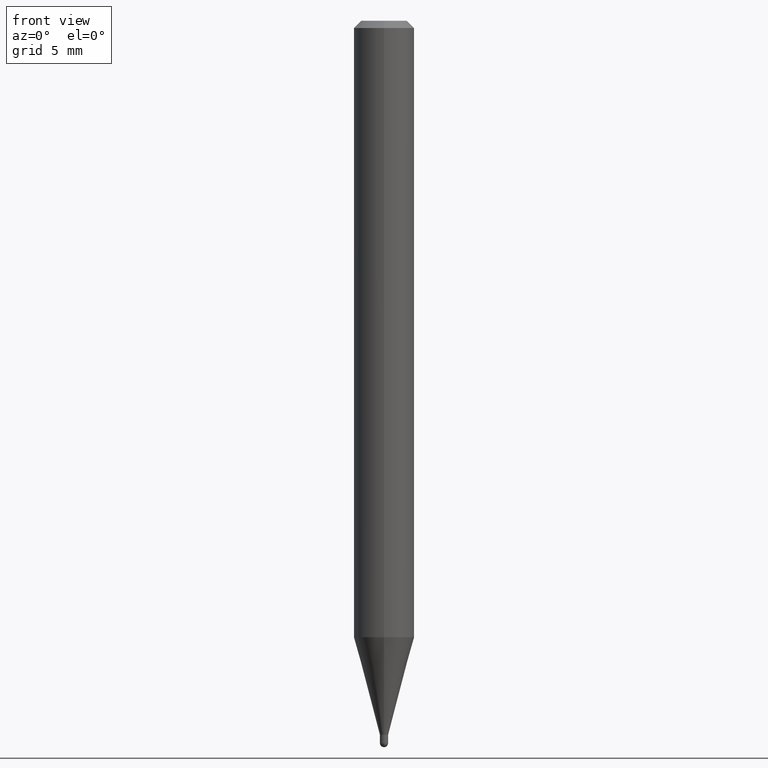
[diagram: clean part render]
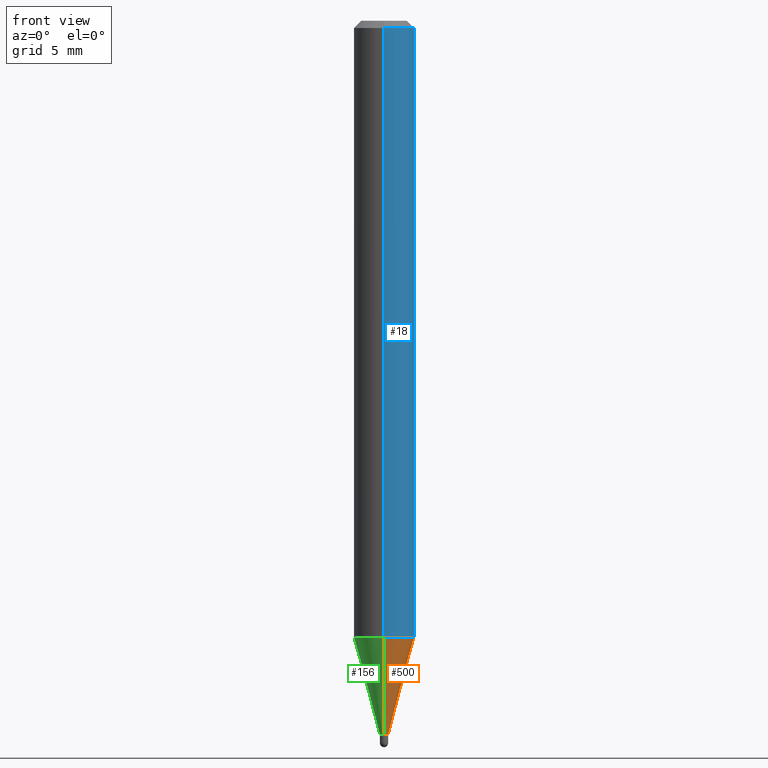
[diagram: same view with three faces highlighted in distinct colors, each labeled with its STEP entity id]
A machine part, front view with three faces highlighted in distinct colors.
Their STEP definitions:

[orange] entity #500 — the highlighted conical surface has half-angle 15 deg.
#1 = DIRECTION ( 'NONE',  ( -6.982962677686265922E-15, -1.000000000000000000, 4.370956789862821150E-15 ) ) ;
#14 = VERTEX_POINT ( 'NONE', #236 ) ;
#24 = EDGE_CURVE ( 'NONE', #374, #96, #238, .T. ) ;
#29 = AXIS2_PLACEMENT_3D ( 'NONE', #245, #394, #36 ) ;
#33 = DIRECTION ( 'NONE',  ( -2.445465897331447067E-29, 3.491485504487190597E-15, 1.000000000000000000 ) ) ;
#36 = DIRECTION ( 'NONE',  ( -6.982962677686266711E-15, -1.000000000000000000, 0.000000000000000000 ) ) ;
#67 = DIRECTION ( 'NONE',  ( 1.839019923739648436E-15, 0.2588190451025317307, 0.9659258262890653146 ) ) ;
#77 = CARTESIAN_POINT ( 'NONE',  ( 2.522426711948690701E-16, 0.008499999999994777358, -1.474500000000000366 ) ) ;
#96 = VERTEX_POINT ( 'NONE', #241 ) ;
#157 = AXIS2_PLACEMENT_3D ( 'NONE', #356, #33, #1 ) ;
#161 = CIRCLE ( 'NONE', #29, 0.008499999999999924283 ) ;
#162 = LINE ( 'NONE', #466, #429 ) ;
#165 = CIRCLE ( 'NONE', #157, 0.06250000000000000000 ) ;
#186 = EDGE_LOOP ( 'NONE', ( #331, #448, #328, #485 ) ) ;
#225 = VERTEX_POINT ( 'NONE', #417 ) ;
#236 = CARTESIAN_POINT ( 'NONE',  ( -4.364351673553606080E-16, -0.06250000000000446865, -1.272969256391286663 ) ) ;
#238 = LINE ( 'NONE', #277, #364 ) ;
#241 = CARTESIAN_POINT ( 'NONE',  ( 4.440892098500935790E-16, 0.06249999999999555217, -1.272969256391287329 ) ) ;
#245 = CARTESIAN_POINT ( 'NONE',  ( 3.605839465615219646E-29, -5.148195376366364241E-15, -1.474500000000000366 ) ) ;
#270 = EDGE_CURVE ( 'NONE', #225, #14, #162, .T. ) ;
#277 = CARTESIAN_POINT ( 'NONE',  ( 6.039613253964404353E-17, 0.008499999999994777358, -1.474500000000000366 ) ) ;
#328 = ORIENTED_EDGE ( 'NONE', *, *, #368, .F. ) ;
#330 = FACE_OUTER_BOUND ( 'NONE', #186, .T. ) ;
#331 = ORIENTED_EDGE ( 'NONE', *, *, #412, .T. ) ;
#356 = CARTESIAN_POINT ( 'NONE',  ( 3.113002904856262917E-29, -4.444553706348016691E-15, -1.272969256391287107 ) ) ;
#364 = VECTOR ( 'NONE', #67, 39.37007874015748143 ) ;
#368 = EDGE_CURVE ( 'NONE', #14, #96, #165, .T. ) ;
#373 = CARTESIAN_POINT ( 'NONE',  ( 3.605839465615219646E-29, -5.148195376366364241E-15, -1.474500000000000366 ) ) ;
#374 = VERTEX_POINT ( 'NONE', #77 ) ;
#394 = DIRECTION ( 'NONE',  ( -2.445465897331447067E-29, 3.491485504487190597E-15, 1.000000000000000000 ) ) ;
#408 = DIRECTION ( 'NONE',  ( -2.445465897331447067E-29, 3.491485504487190597E-15, 1.000000000000000000 ) ) ;
#412 = EDGE_CURVE ( 'NONE', #225, #374, #161, .T. ) ;
#417 = CARTESIAN_POINT ( 'NONE',  ( -5.935518276029667030E-17, -0.008500000000005072942, -1.474500000000000366 ) ) ;
#429 = VECTOR ( 'NONE', #441, 39.37007874015748854 ) ;
#441 = DIRECTION ( 'NONE',  ( -1.807323732225377471E-15, -0.2588190451025249583, 0.9659258262890670910 ) ) ;
#448 = ORIENTED_EDGE ( 'NONE', *, *, #24, .T. ) ;
#466 = CARTESIAN_POINT ( 'NONE',  ( -5.935518276029667030E-17, -0.008500000000005072942, -1.474500000000000366 ) ) ;
#479 = DIRECTION ( 'NONE',  ( -6.982962677686266711E-15, -1.000000000000000000, 0.000000000000000000 ) ) ;
#485 = ORIENTED_EDGE ( 'NONE', *, *, #270, .F. ) ;
#500 = ADVANCED_FACE ( 'NONE', ( #330 ), #508, .T. ) ;
#504 = AXIS2_PLACEMENT_3D ( 'NONE', #373, #408, #479 ) ;
#508 = CONICAL_SURFACE ( 'NONE', #504, 0.008499999999999924283, 0.2617993877991572904 ) ;

[blue] entity #18 — the highlighted cylindrical surface (edge-blend (fillet) strip) has radius 1.5875 mm, axis along (-0, 0, 1).
#1 = DIRECTION ( 'NONE',  ( -6.982962677686265922E-15, -1.000000000000000000, 4.370956789862821150E-15 ) ) ;
#3 = AXIS2_PLACEMENT_3D ( 'NONE', #327, #170, #395 ) ;
#14 = VERTEX_POINT ( 'NONE', #236 ) ;
#18 = ADVANCED_FACE ( 'NONE', ( #377 ), #385, .T. ) ;
#33 = DIRECTION ( 'NONE',  ( -2.445465897331447067E-29, 3.491485504487190597E-15, 1.000000000000000000 ) ) ;
#65 = DIRECTION ( 'NONE',  ( -2.445465897331447067E-29, 3.491485504487190597E-15, 1.000000000000000000 ) ) ;
#66 = ORIENTED_EDGE ( 'NONE', *, *, #295, .T. ) ;
#74 = DIRECTION ( 'NONE',  ( -2.445465897331447067E-29, 3.491485504487190992E-15, 1.000000000000000000 ) ) ;
#92 = VERTEX_POINT ( 'NONE', #190 ) ;
#95 = ORIENTED_EDGE ( 'NONE', *, *, #117, .F. ) ;
#96 = VERTEX_POINT ( 'NONE', #241 ) ;
#117 = EDGE_CURVE ( 'NONE', #14, #92, #380, .T. ) ;
#144 = VERTEX_POINT ( 'NONE', #223 ) ;
#151 = DIRECTION ( 'NONE',  ( -6.982962677686265922E-15, -1.000000000000000000, 3.491485504487190203E-15 ) ) ;
#157 = AXIS2_PLACEMENT_3D ( 'NONE', #356, #33, #1 ) ;
#165 = CIRCLE ( 'NONE', #157, 0.06250000000000000000 ) ;
#170 = DIRECTION ( 'NONE',  ( -2.445465897331447067E-29, 3.491485504487190597E-15, 1.000000000000000000 ) ) ;
#182 = VECTOR ( 'NONE', #74, 39.37007874015748143 ) ;
#190 = CARTESIAN_POINT ( 'NONE',  ( -4.364351673553912750E-16, -0.06250000000000005551, -0.01499999999999979128 ) ) ;
#223 = CARTESIAN_POINT ( 'NONE',  ( 4.440892098500938748E-16, 0.06249999999999995143, -0.01500000000000022669 ) ) ;
#236 = CARTESIAN_POINT ( 'NONE',  ( -4.364351673553606080E-16, -0.06250000000000446865, -1.272969256391286663 ) ) ;
#241 = CARTESIAN_POINT ( 'NONE',  ( 4.440892098500935790E-16, 0.06249999999999555217, -1.272969256391287329 ) ) ;
#259 = EDGE_LOOP ( 'NONE', ( #302, #66, #403, #95 ) ) ;
#280 = VECTOR ( 'NONE', #292, 39.37007874015748143 ) ;
#287 = EDGE_CURVE ( 'NONE', #92, #144, #461, .T. ) ;
#292 = DIRECTION ( 'NONE',  ( -2.445465897331447067E-29, 3.491485504487190992E-15, 1.000000000000000000 ) ) ;
#295 = EDGE_CURVE ( 'NONE', #96, #144, #432, .T. ) ;
#302 = ORIENTED_EDGE ( 'NONE', *, *, #368, .T. ) ;
#323 = CARTESIAN_POINT ( 'NONE',  ( 4.440892098500625669E-16, 0.06250000000000000000, -2.182178440304493877E-16 ) ) ;
#327 = CARTESIAN_POINT ( 'NONE',  ( 3.668198845997173123E-31, -5.237228256730788953E-17, -0.01500000000000000812 ) ) ;
#342 = CARTESIAN_POINT ( 'NONE',  ( 0.000000000000000000, 0.000000000000000000, 0.000000000000000000 ) ) ;
#347 = CARTESIAN_POINT ( 'NONE',  ( -4.364351673553916201E-16, -0.06250000000000000000, 2.182178440304493877E-16 ) ) ;
#356 = CARTESIAN_POINT ( 'NONE',  ( 3.113002904856262917E-29, -4.444553706348016691E-15, -1.272969256391287107 ) ) ;
#368 = EDGE_CURVE ( 'NONE', #14, #96, #165, .T. ) ;
#377 = FACE_OUTER_BOUND ( 'NONE', #259, .T. ) ;
#380 = LINE ( 'NONE', #347, #182 ) ;
#385 = CYLINDRICAL_SURFACE ( 'NONE', #391, 0.06250000000000000000 ) ;
#391 = AXIS2_PLACEMENT_3D ( 'NONE', #342, #65, #151 ) ;
#395 = DIRECTION ( 'NONE',  ( -6.982962677686265922E-15, -1.000000000000000000, 3.483106191921935554E-15 ) ) ;
#403 = ORIENTED_EDGE ( 'NONE', *, *, #287, .F. ) ;
#432 = LINE ( 'NONE', #323, #280 ) ;
#461 = CIRCLE ( 'NONE', #3, 0.06250000000000000000 ) ;

[green] entity #156 — the highlighted conical surface has half-angle 15 deg.
#14 = VERTEX_POINT ( 'NONE', #236 ) ;
#24 = EDGE_CURVE ( 'NONE', #374, #96, #238, .T. ) ;
#57 = ORIENTED_EDGE ( 'NONE', *, *, #468, .T. ) ;
#67 = DIRECTION ( 'NONE',  ( 1.839019923739648436E-15, 0.2588190451025317307, 0.9659258262890653146 ) ) ;
#75 = FACE_OUTER_BOUND ( 'NONE', #370, .T. ) ;
#77 = CARTESIAN_POINT ( 'NONE',  ( 2.522426711948690701E-16, 0.008499999999994777358, -1.474500000000000366 ) ) ;
#83 = CARTESIAN_POINT ( 'NONE',  ( 3.605839465615219646E-29, -5.148195376366364241E-15, -1.474500000000000366 ) ) ;
#87 = DIRECTION ( 'NONE',  ( -6.982962677686266711E-15, -1.000000000000000000, 0.000000000000000000 ) ) ;
#96 = VERTEX_POINT ( 'NONE', #241 ) ;
#105 = DIRECTION ( 'NONE',  ( -6.982962677686265922E-15, -1.000000000000000000, 4.370956789862821150E-15 ) ) ;
#114 = AXIS2_PLACEMENT_3D ( 'NONE', #378, #187, #105 ) ;
#156 = ADVANCED_FACE ( 'NONE', ( #75 ), #332, .T. ) ;
#162 = LINE ( 'NONE', #466, #429 ) ;
#173 = CIRCLE ( 'NONE', #416, 0.008499999999999924283 ) ;
#185 = ORIENTED_EDGE ( 'NONE', *, *, #206, .F. ) ;
#187 = DIRECTION ( 'NONE',  ( -2.445465897331447067E-29, 3.491485504487190597E-15, 1.000000000000000000 ) ) ;
#206 = EDGE_CURVE ( 'NONE', #96, #14, #343, .T. ) ;
#213 = ORIENTED_EDGE ( 'NONE', *, *, #270, .T. ) ;
#225 = VERTEX_POINT ( 'NONE', #417 ) ;
#235 = DIRECTION ( 'NONE',  ( -6.982962677686266711E-15, -1.000000000000000000, 0.000000000000000000 ) ) ;
#236 = CARTESIAN_POINT ( 'NONE',  ( -4.364351673553606080E-16, -0.06250000000000446865, -1.272969256391286663 ) ) ;
#238 = LINE ( 'NONE', #277, #364 ) ;
#241 = CARTESIAN_POINT ( 'NONE',  ( 4.440892098500935790E-16, 0.06249999999999555217, -1.272969256391287329 ) ) ;
#268 = DIRECTION ( 'NONE',  ( -2.445465897331447067E-29, 3.491485504487190597E-15, 1.000000000000000000 ) ) ;
#270 = EDGE_CURVE ( 'NONE', #225, #14, #162, .T. ) ;
#277 = CARTESIAN_POINT ( 'NONE',  ( 6.039613253964404353E-17, 0.008499999999994777358, -1.474500000000000366 ) ) ;
#282 = ORIENTED_EDGE ( 'NONE', *, *, #24, .F. ) ;
#332 = CONICAL_SURFACE ( 'NONE', #445, 0.008499999999999924283, 0.2617993877991572904 ) ;
#343 = CIRCLE ( 'NONE', #114, 0.06250000000000000000 ) ;
#364 = VECTOR ( 'NONE', #67, 39.37007874015748143 ) ;
#370 = EDGE_LOOP ( 'NONE', ( #282, #57, #213, #185 ) ) ;
#374 = VERTEX_POINT ( 'NONE', #77 ) ;
#378 = CARTESIAN_POINT ( 'NONE',  ( 3.113002904856262917E-29, -4.444553706348016691E-15, -1.272969256391287107 ) ) ;
#386 = CARTESIAN_POINT ( 'NONE',  ( 3.605839465615219646E-29, -5.148195376366364241E-15, -1.474500000000000366 ) ) ;
#416 = AXIS2_PLACEMENT_3D ( 'NONE', #83, #469, #87 ) ;
#417 = CARTESIAN_POINT ( 'NONE',  ( -5.935518276029667030E-17, -0.008500000000005072942, -1.474500000000000366 ) ) ;
#429 = VECTOR ( 'NONE', #441, 39.37007874015748854 ) ;
#441 = DIRECTION ( 'NONE',  ( -1.807323732225377471E-15, -0.2588190451025249583, 0.9659258262890670910 ) ) ;
#445 = AXIS2_PLACEMENT_3D ( 'NONE', #386, #268, #235 ) ;
#466 = CARTESIAN_POINT ( 'NONE',  ( -5.935518276029667030E-17, -0.008500000000005072942, -1.474500000000000366 ) ) ;
#468 = EDGE_CURVE ( 'NONE', #374, #225, #173, .T. ) ;
#469 = DIRECTION ( 'NONE',  ( -2.445465897331447067E-29, 3.491485504487190597E-15, 1.000000000000000000 ) ) ;